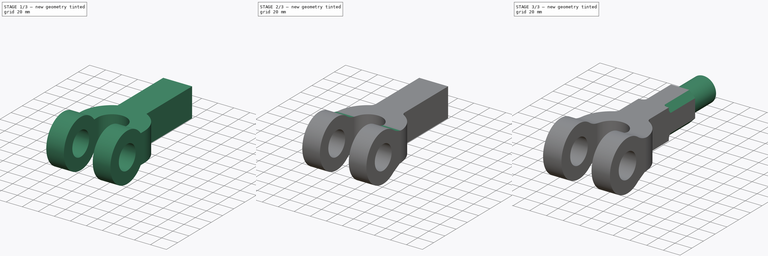
[diagram: build sequence overview — one tinted view per stage of 3, left to right]
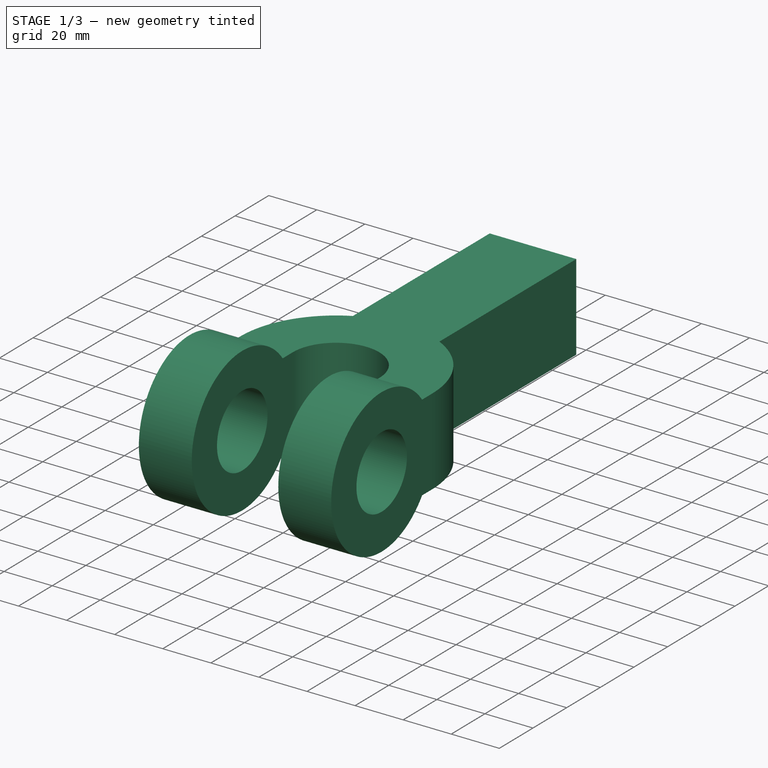
[diagram: stage 1 of 3 — iso view after this stage's code; geometry added in this stage tinted green]
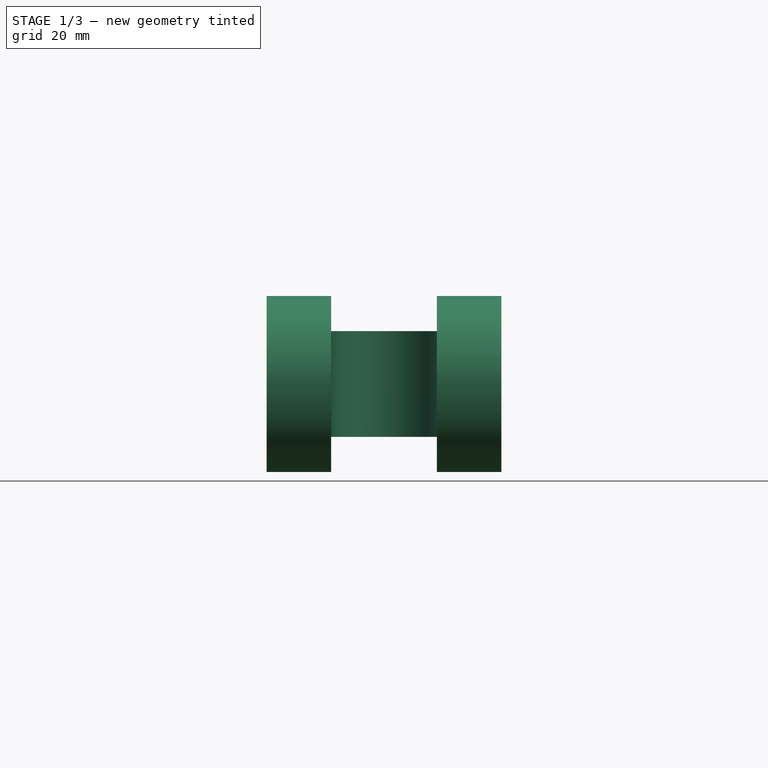
[diagram: stage 1 of 3 — front view after this stage's code; geometry added in this stage tinted green]
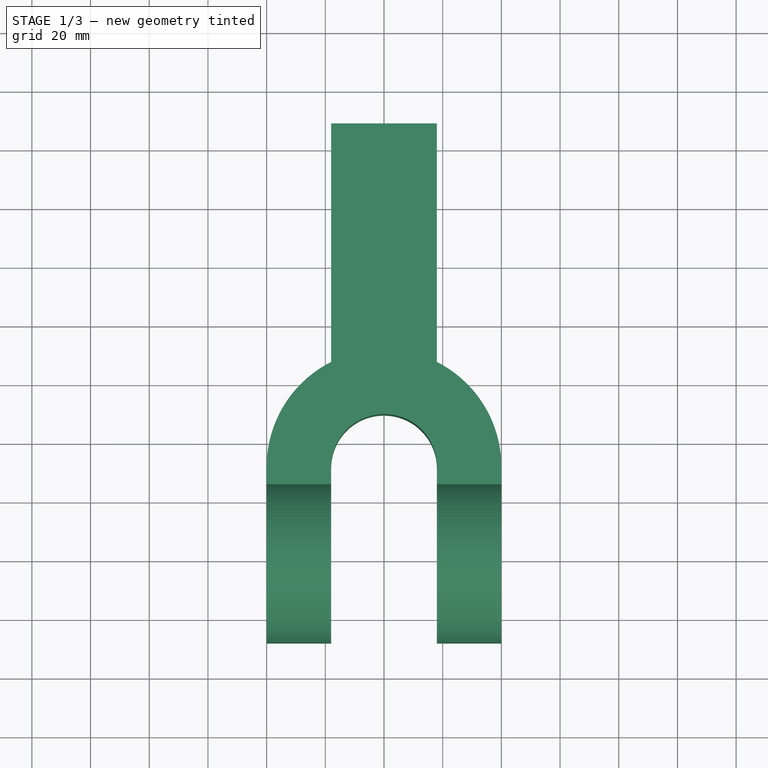
[diagram: stage 1 of 3 — top view after this stage's code; geometry added in this stage tinted green]
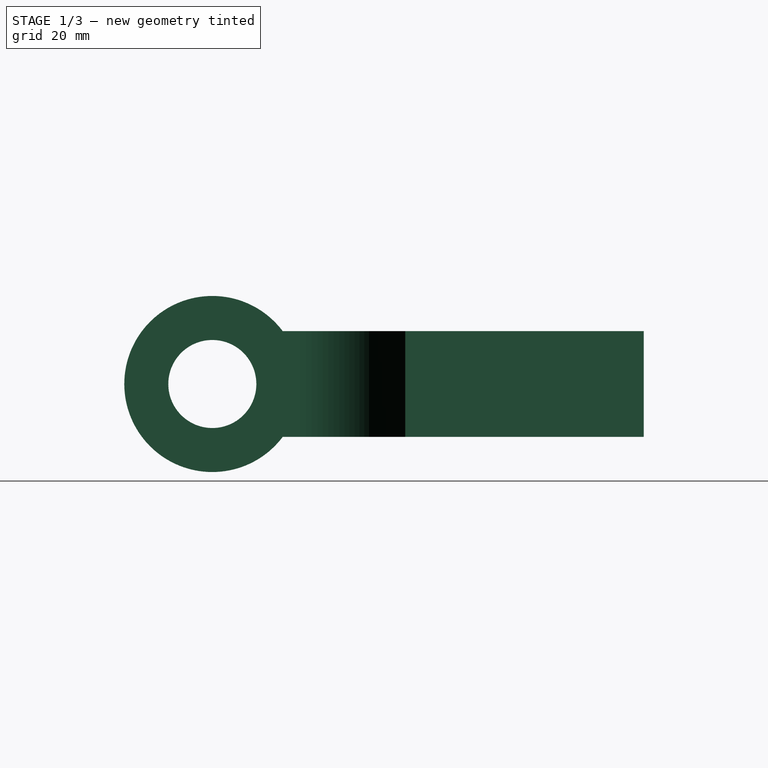
[diagram: stage 1 of 3 — right view after this stage's code; geometry added in this stage tinted green]
FCSTD DOCUMENT  (FreeCAD 1.0R39319 (Git))
Label: double_eye
License: All rights reserved
LicenseURL: https://en.wikipedia.org/wiki/All_rights_reserved
objects: Sketcher::SketchObject×5, PartDesign::Pocket×3, PartDesign::Fillet×3, PartDesign::Pad×1, Part::Extrusion×1, PartDesign::Body×1
note: 33 computed .brp shape members not serialized (recipe doc carries the construction recipe); baked Part::Feature solids carry a one-line shape summary decoded from their .brp

FEATURE [Sketcher::SketchObject] Sketch
  ArcFitTolerance = 1e-06
  AttachmentSupport = -> [XY_Plane]
  FullyConstrained = true
  MakeInternals = false
  MapMode = 5
  sketch-geometry (4):
    g0: LineSegment StartX=-40 StartY=88.5 StartZ=0 EndX=-40 EndY=-88.5 EndZ=0
    g1: LineSegment StartX=-40 StartY=-88.5 StartZ=0 EndX=40 EndY=-88.5 EndZ=0
    g2: LineSegment StartX=40 StartY=-88.5 StartZ=0 EndX=40 EndY=88.5 EndZ=0
    g3: LineSegment StartX=40 StartY=88.5 StartZ=0 EndX=-40 EndY=88.5 EndZ=0
  constraints (11):
    c: Coincident(g0,g1)
    c: Coincident(g1,g2)
    c: Coincident(g2,g3)
    c: Coincident(g3,g0)
    c: Vertical(g0)
    c: Vertical(g2)
    c: Horizontal(g1)
    c: Horizontal(g3)
    c: Distance(g0,g2) = 80
    c: Distance(g1,g3) = 177
    c: Symmetric(g0,g1,g-1)
FEATURE [PartDesign::Pad] Pad
  Direction = (0,0,1)
  Length = 60
  Length2 = 10
  Profile = -> Sketch
  ReferenceAxis = -> Sketch [N_Axis]
  Refine = true
  Suppressed = false
  Type = 0
FEATURE [Sketcher::SketchObject] Sketch001
  ArcFitTolerance = 1e-06
  AttachmentSupport = -> [Pad]
  ExternalGeometry = -> [Pad]
  FullyConstrained = false
  MakeInternals = false
  MapMode = 5
  Placement = pos=(-40,0,0) rot=(0.57735,-0.57735,-0.57735;2.0944rad)
  sketch-geometry (15):
    g0: ArcOfCircle CenterX=58.5 CenterY=30 CenterZ=0 NormalX=0 NormalY=0 NormalZ=1 AngleXU=0 Radius=30 StartAngle=4.71239 EndAngle=7.85398
    g1: LineSegment StartX=58.5 StartY=60 StartZ=0 EndX=88.5 EndY=60 EndZ=0
    g2: LineSegment StartX=88.5 StartY=60 StartZ=0 EndX=88.5 EndY=0 EndZ=0
    g3: LineSegment StartX=58.5 StartY=0 StartZ=0 EndX=88.5 EndY=0 EndZ=0
    g4: Circle CenterX=58.5 CenterY=30 CenterZ=0 NormalX=0 NormalY=0 NormalZ=1 AngleXU=0 Radius=15
    g5: Circle [constr] CenterX=58.5 CenterY=30 CenterZ=0 NormalX=0 NormalY=0 NormalZ=1 AngleXU=0 Radius=30
    g6: LineSegment StartX=34.5 StartY=48 StartZ=0 EndX=-88.5 EndY=48 EndZ=0
    g7: LineSegment StartX=34.5 StartY=12 StartZ=0 EndX=-88.5 EndY=12 EndZ=0
    g8: LineSegment [constr] StartX=88.5 StartY=30 StartZ=0 EndX=-88.4491 EndY=30 EndZ=0
    g9: LineSegment StartX=-88.5 StartY=48 StartZ=0 EndX=-88.5 EndY=60 EndZ=0
    g10: LineSegment StartX=-88.5 StartY=60 StartZ=0 EndX=58.5 EndY=60 EndZ=0
    g11: LineSegment StartX=-88.5 StartY=12 StartZ=0 EndX=-88.5 EndY=0 EndZ=0
    g12: LineSegment StartX=-88.5 StartY=0 StartZ=0 EndX=58.5 EndY=0 EndZ=0
    g13: ArcOfCircle CenterX=58.5 CenterY=30 CenterZ=0 NormalX=0 NormalY=0 NormalZ=1 AngleXU=0 Radius=30 StartAngle=1.5708 EndAngle=2.49809
    g14: ArcOfCircle CenterX=58.5 CenterY=30 CenterZ=0 NormalX=0 NormalY=0 NormalZ=1 AngleXU=0 Radius=30 StartAngle=3.78509 EndAngle=4.71239
  constraints (40):
    c: Diameter(g0) = 60
    c: Distance(g0,g-3) = 30
    c: Tangent(g0,g-4)
    c: Coincident(g1,g-4)
    c: Horizontal(g1)
    c: Coincident(g2,g1)
    c: Coincident(g2,g-3)
    c: Coincident(g3,g2)
    c: Horizontal(g3)
    c: Diameter(g4) = 30
    c: Coincident(g4,g0)
    c: Coincident(g0,g1)
    c: Coincident(g0,g3)
    c: Coincident(g5,g0)
    c: PointOnObject(g0,g5)
    c: PointOnObject(g6,g5)
    c: Horizontal(g6)
    c: PointOnObject(g7,g5)
    c: Horizontal(g7)
    c: Equal(g6,g7)
    c: Distance(g7,g6) = 36
    c: PointOnObject(g8,g2)
    c: Horizontal(g8)
    c: Symmetric(g6,g7,g8)
    c: Coincident(g9,g6)
    c: PointOnObject(g9,g-4)
    c: Vertical(g9)
    c: Coincident(g10,g9)
    c: Coincident(g10,g0)
    c: Coincident(g11,g7)
    c: PointOnObject(g11,g-1)
    c: Vertical(g11)
    c: Coincident(g12,g11)
    c: Coincident(g12,g0)
    c: DistanceX(g10,g10) = 147
    c: Coincident(g14,g13)
    c: Coincident(g14,g7)
    c: Coincident(g14,g0)
    c: Coincident(g13,g0)
    c: Coincident(g13,g6)
FEATURE [PartDesign::Pocket] Pocket
  BaseFeature = -> Pad
  Direction = (1,0,0)
  Length = 80
  Length2 = 5
  Profile = -> Sketch001
  ReferenceAxis = -> Sketch001 [N_Axis]
  Refine = true
  Suppressed = false
  Type = 0
FEATURE [Sketcher::SketchObject] Sketch002
  ArcFitTolerance = 1e-06
  AttachmentSupport = -> [Pocket]
  ExternalGeometry = -> [Pocket]
  FullyConstrained = false
  MakeInternals = false
  MapMode = 5
  Placement = pos=(0,0,48) rot=(0,0,1;0rad)
  sketch-geometry (12):
    g0: ArcOfCircle CenterX=0 CenterY=-28.5 CenterZ=0 NormalX=0 NormalY=0 NormalZ=1 AngleXU=0 Radius=18 StartAngle=7e-16 EndAngle=3.14159
    g1: LineSegment StartX=-18 StartY=-28.5 StartZ=0 EndX=-18 EndY=-88.5 EndZ=0
    g2: LineSegment StartX=18 StartY=-28.5 StartZ=0 EndX=18 EndY=-88.5 EndZ=0
    g3: LineSegment StartX=-18 StartY=-88.5 StartZ=0 EndX=18 EndY=-88.5 EndZ=0
    g4: LineSegment StartX=-18 StartY=88.5 StartZ=0 EndX=-18 EndY=7.22114 EndZ=0
    g5: LineSegment StartX=18 StartY=88.5 StartZ=0 EndX=18 EndY=7.22114 EndZ=0
    g6: LineSegment StartX=-18 StartY=88.5 StartZ=0 EndX=-40 EndY=88.5 EndZ=0
    g7: LineSegment StartX=-40 StartY=88.5 StartZ=0 EndX=-40 EndY=-28.5 EndZ=0
    g8: LineSegment StartX=18 StartY=88.5 StartZ=0 EndX=40 EndY=88.5 EndZ=0
    g9: LineSegment StartX=40 StartY=88.5 StartZ=0 EndX=40 EndY=-28.5 EndZ=0
    g10: ArcOfCircle CenterX=0 CenterY=-28.5 CenterZ=0 NormalX=0 NormalY=0 NormalZ=1 AngleXU=0 Radius=40 StartAngle=2.03756 EndAngle=3.14159
    g11: ArcOfCircle CenterX=0 CenterY=-28.5 CenterZ=0 NormalX=0 NormalY=0 NormalZ=1 AngleXU=0 Radius=40 StartAngle=-3.606e-13 EndAngle=1.10403
  constraints (28):
    c: Diameter(g0) = 36
    c: PointOnObject(g0,g-2)
    c: PointOnObject(g1,g-7)
    c: Vertical(g1)
    c: PointOnObject(g2,g-7)
    c: Vertical(g2)
    c: Equal(g1,g2)
    c: Tangent(g0,g1) = -1.5708
    c: Coincident(g0,g2)
    c: Coincident(g3,g1)
    c: Coincident(g3,g2)
    c: PointOnObject(g4,g-8)
    c: PointOnObject(g4,g10)
    c: Vertical(g4)
    c: Vertical(g5)
    c: Distance(g5,g4) = 36
    c: Symmetric(g4,g5,g-2)
    c: Coincident(g6,g4)
    c: Coincident(g6,g-8)
    c: Coincident(g7,g6)
    c: Coincident(g8,g5)
    c: Coincident(g8,g-8)
    c: Coincident(g9,g8)
    c: Distance(g0,g8) = 117
    c: Coincident(g11,g5)
    c: PointOnObject(g10,g4)
    c: PointOnObject(g10,g7)
    c: PointOnObject(g11,g9)
FEATURE [PartDesign::Pocket] Pocket001
  BaseFeature = -> Pocket
  Direction = (0,0,-1)
  Length = 5
  Length2 = 5
  Midplane = true
  Profile = -> Sketch002
  ReferenceAxis = -> Sketch002 [N_Axis]
  Refine = true
  Suppressed = false
  Type = 1
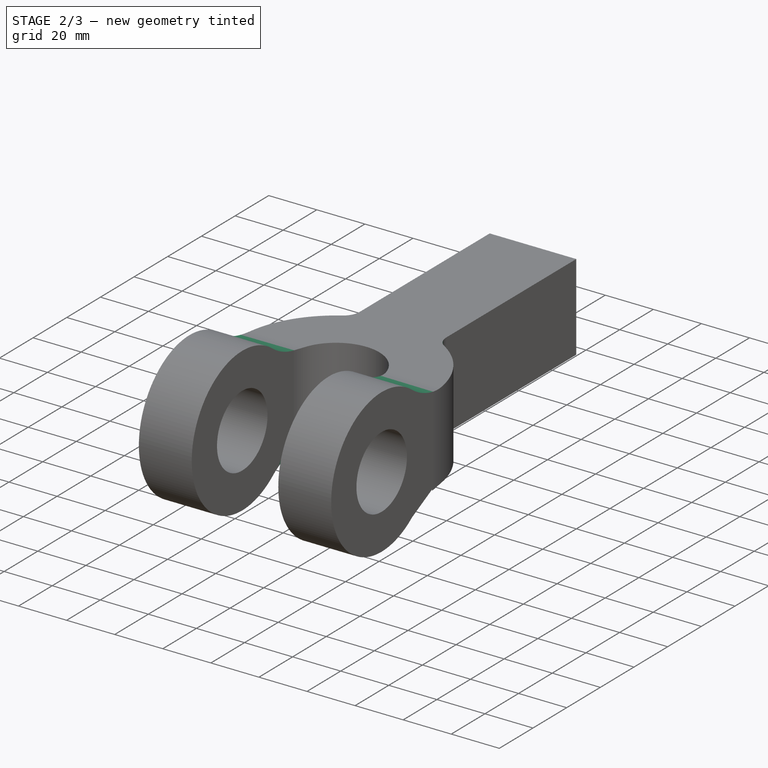
[diagram: stage 2 of 3 — iso view after this stage's code; geometry added in this stage tinted green]
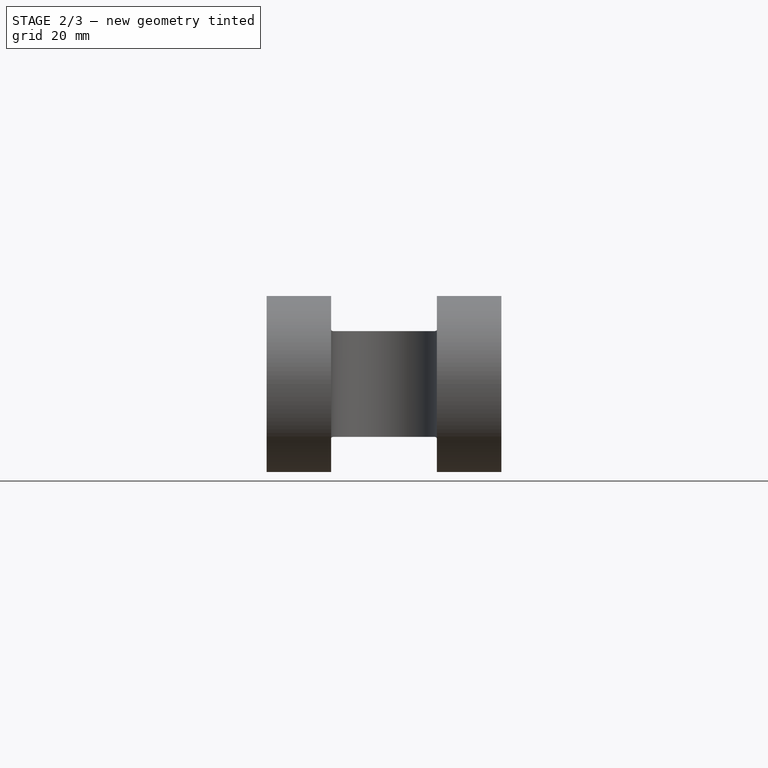
[diagram: stage 2 of 3 — front view after this stage's code; geometry added in this stage tinted green]
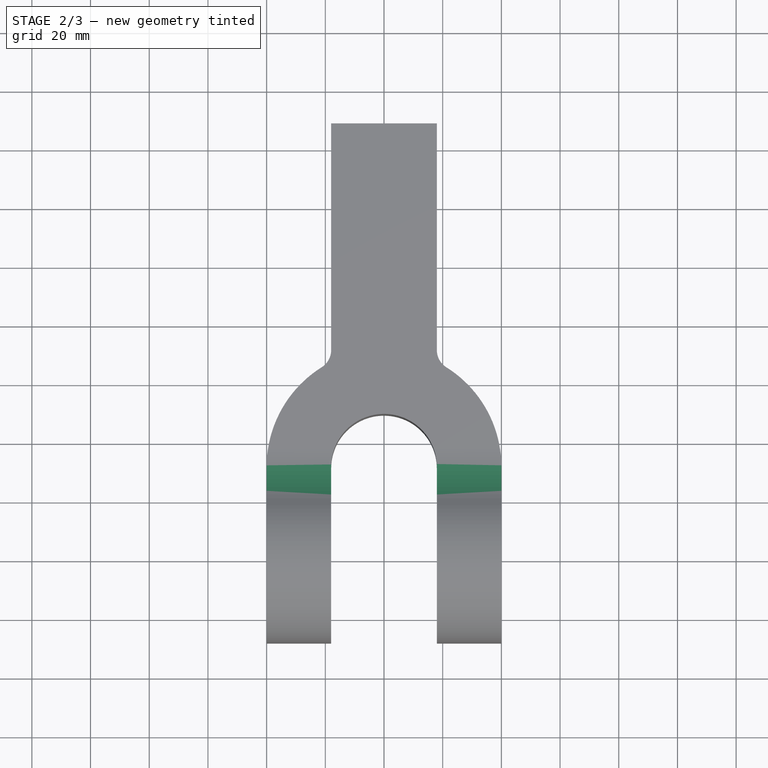
[diagram: stage 2 of 3 — top view after this stage's code; geometry added in this stage tinted green]
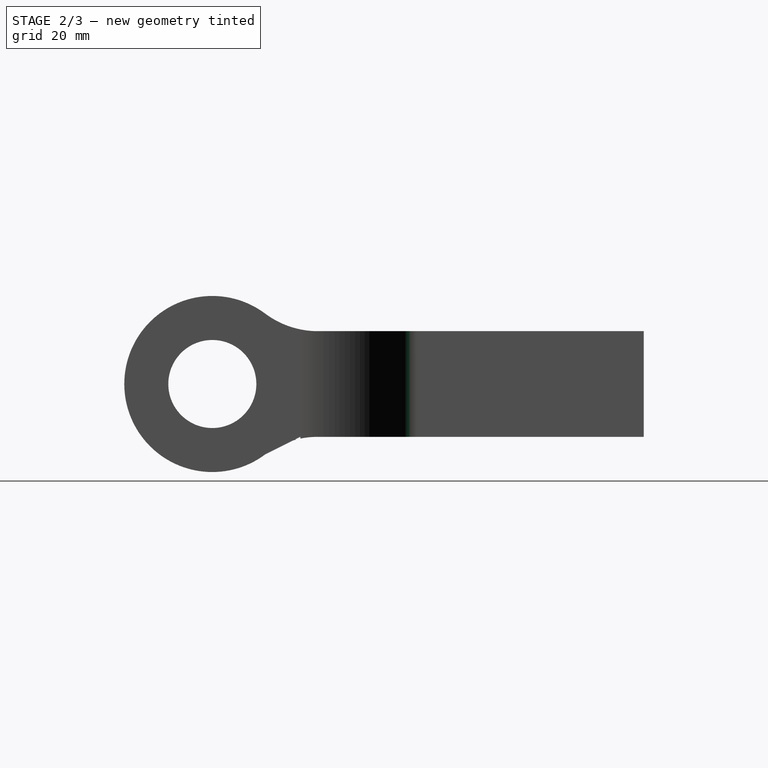
[diagram: stage 2 of 3 — right view after this stage's code; geometry added in this stage tinted green]
FEATURE [PartDesign::Fillet] Fillet
  Base = -> Pocket001 [Edge29,Edge44]
  BaseFeature = -> Pocket001
  Radius = 7
  Refine = true
  SupportTransform = false
  Suppressed = false
  UseAllEdges = false
FEATURE [PartDesign::Fillet] Fillet001
  Base = -> Fillet [Edge5,Edge13,Edge60,Edge59]
  BaseFeature = -> Fillet
  Radius = 30
  Refine = true
  SupportTransform = false
  Suppressed = false
  UseAllEdges = false
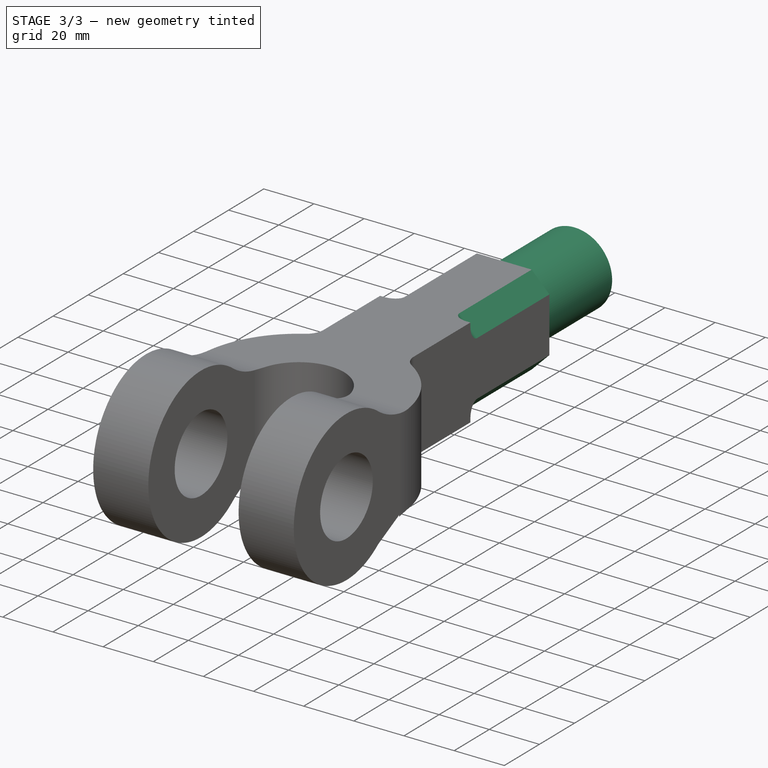
[diagram: stage 3 of 3 — iso view after this stage's code; geometry added in this stage tinted green]
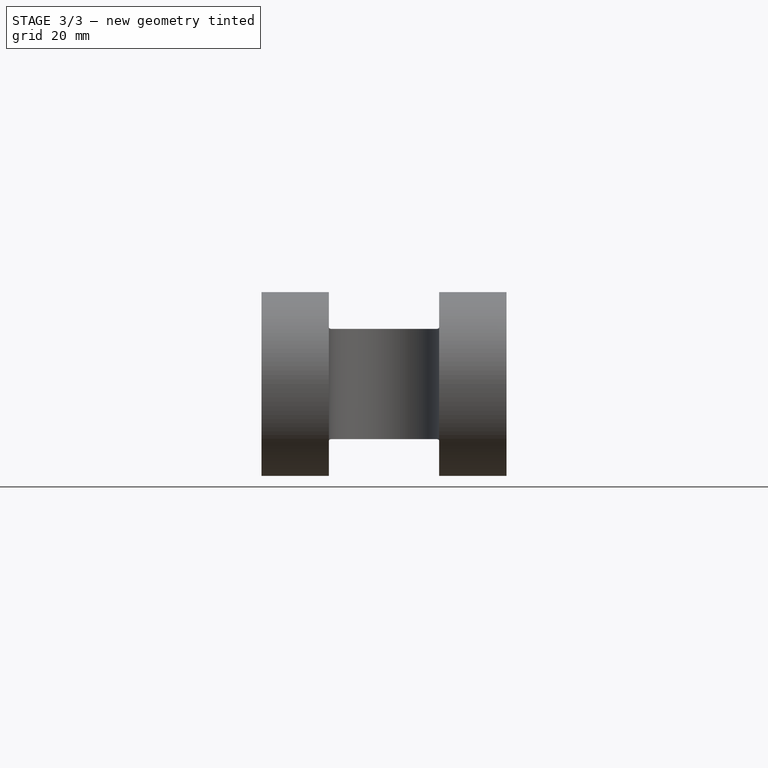
[diagram: stage 3 of 3 — front view after this stage's code; geometry added in this stage tinted green]
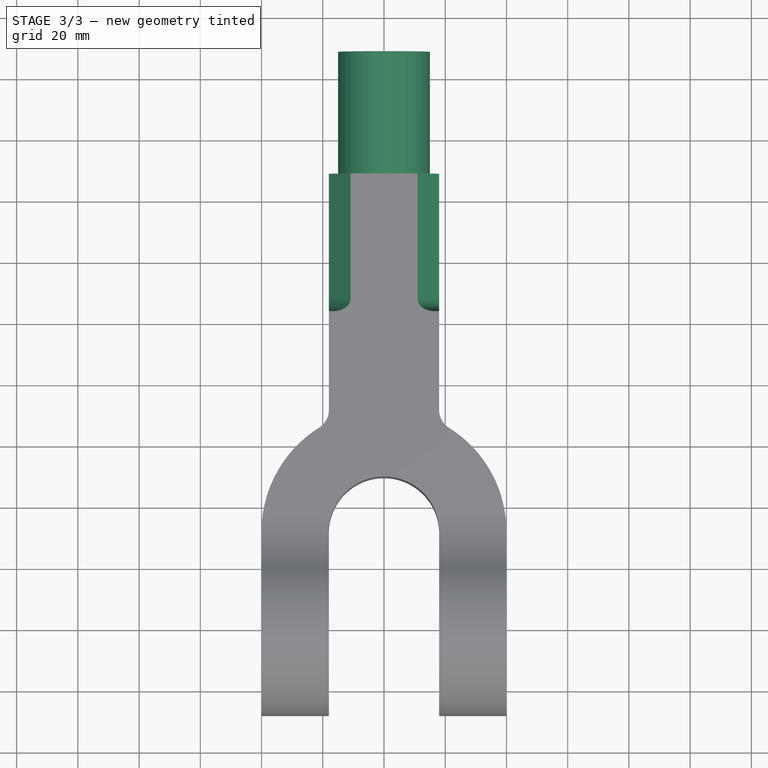
[diagram: stage 3 of 3 — top view after this stage's code; geometry added in this stage tinted green]
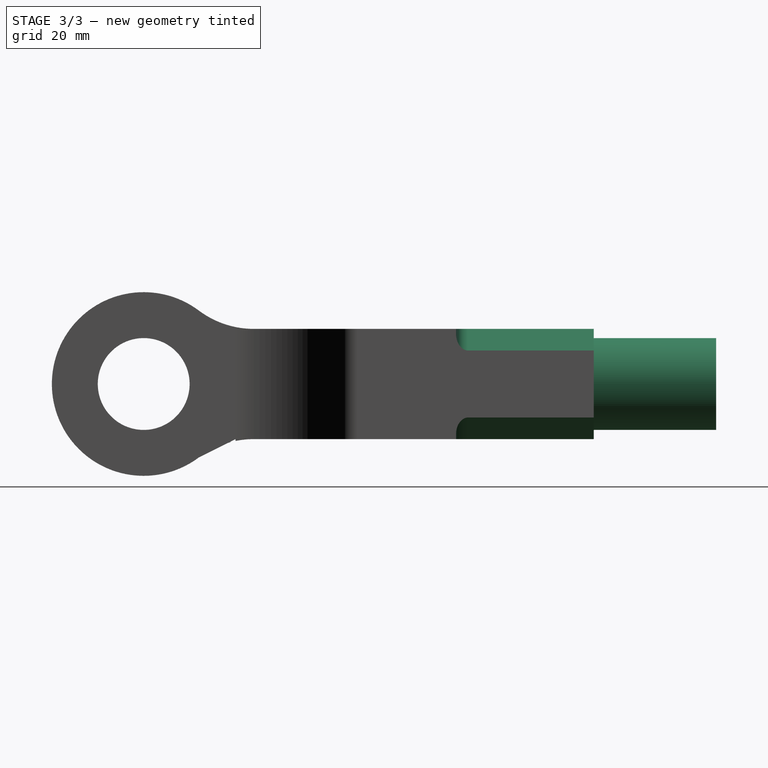
[diagram: stage 3 of 3 — right view after this stage's code; geometry added in this stage tinted green]
FEATURE [Sketcher::SketchObject] Sketch003
  ArcFitTolerance = 1e-06
  AttachmentSupport = -> [Fillet001]
  ExternalGeometry = -> [Fillet001]
  FullyConstrained = true
  MakeInternals = false
  MapMode = 5
  Placement = pos=(0,88.5,0) rot=(0,0.707107,0.707107;3.14159rad)
  sketch-geometry (1):
    g0: Circle CenterX=1.4e-15 CenterY=30 CenterZ=0 NormalX=0 NormalY=0 NormalZ=1 AngleXU=0 Radius=15
  constraints (2):
    c: Diameter(g0) = 30
    c: Symmetric(g-4,g-6,g0)
FEATURE [Part::Extrusion] Extrude
  Base = -> Sketch003
  Dir = (0,1,-2e-16)
  DirMode = 2
  FaceMakerClass = Part::FaceMakerBullseye
  FaceMakerMode = 3
  LengthFwd = 40
  LengthRev = 0
  Solid = true
  Symmetric = false
FEATURE [Sketcher::SketchObject] Sketch004
  ArcFitTolerance = 1e-06
  AttachmentSupport = -> [Fillet001]
  ExternalGeometry = -> [Fillet001]
  FullyConstrained = false
  MakeInternals = false
  MapMode = 5
  Placement = pos=(0,88.5,0) rot=(0,0.707107,0.707107;3.14159rad)
  sketch-geometry (13):
    g0: LineSegment StartX=-18 StartY=48 StartZ=0 EndX=-18 EndY=40.9289 EndZ=0
    g1: LineSegment StartX=-18 StartY=40.9289 StartZ=0 EndX=-10.9289 EndY=48 EndZ=0
    g2: LineSegment StartX=-10.9289 StartY=48 StartZ=0 EndX=-18 EndY=48 EndZ=0
    g3: LineSegment StartX=10.9289 StartY=48 StartZ=0 EndX=18 EndY=48 EndZ=0
    g4: LineSegment StartX=18 StartY=48 StartZ=0 EndX=18 EndY=40.9289 EndZ=0
    g5: LineSegment StartX=18 StartY=40.9289 StartZ=0 EndX=10.9289 EndY=48 EndZ=0
    g6: LineSegment [constr] StartX=-18 StartY=30 StartZ=0 EndX=18 EndY=30 EndZ=0
    g7: LineSegment StartX=-10.9289 StartY=12 StartZ=0 EndX=-18 EndY=12 EndZ=0
    g8: LineSegment StartX=-18 StartY=12 StartZ=0 EndX=-18 EndY=19.0711 EndZ=0
    g9: LineSegment StartX=-18 StartY=19.0711 StartZ=0 EndX=-10.9289 EndY=12 EndZ=0
    g10: LineSegment StartX=10.9289 StartY=12 StartZ=0 EndX=18 EndY=12 EndZ=0
    g11: LineSegment StartX=18 StartY=12 StartZ=0 EndX=18 EndY=19.0711 EndZ=0
    g12: LineSegment StartX=18 StartY=19.0711 StartZ=0 EndX=10.9289 EndY=12 EndZ=0
  constraints (25):
    c: Coincident(g0,g-4)
    c: PointOnObject(g0,g-4)
    c: Coincident(g1,g0)
    c: PointOnObject(g1,g-3)
    c: Coincident(g2,g1)
    c: Coincident(g2,g0)
    c: Equal(g2,g0)
    c: Distance(g1,g1) = 10
    c: Coincident(g5,g4)
    c: Coincident(g3,g5)
    c: Coincident(g3,g4)
    c: Equal(g3,g4)
    c: Block(g5)
    c: Symmetric(g-4,g-4,g6)
    c: Symmetric(g-5,g-5,g6)
    c: Coincident(g9,g8)
    c: Coincident(g7,g9)
    c: Coincident(g7,g8)
    c: Equal(g7,g8)
    c: Coincident(g12,g11)
    c: Coincident(g10,g12)
    c: Coincident(g10,g11)
    c: Equal(g10,g11)
    c: Block(g12)
    c: Block(g9)
FEATURE [PartDesign::Pocket] Pocket002
  BaseFeature = -> Fillet001
  Direction = (0,-1,2e-16)
  Length = 45
  Length2 = 5
  Profile = -> Sketch004
  ReferenceAxis = -> Sketch004 [N_Axis]
  Refine = true
  Suppressed = false
  Type = 0
FEATURE [PartDesign::Fillet] Fillet002
  Base = -> Pocket002 [Edge36,Edge76,Edge75,Edge28]
  BaseFeature = -> Pocket002
  Radius = 4
  Refine = true
  SupportTransform = false
  Suppressed = false
  UseAllEdges = false
FEATURE [PartDesign::Body] Body
  AllowCompound = false
  Group = -> [Sketch,Pad,Sketch001,Pocket,Sketch002,Pocket001,Fillet,Fillet001,Sketch003,Sketch004,Pocket002,Fillet002]
  Origin = -> Origin
  Tip = -> Fillet002
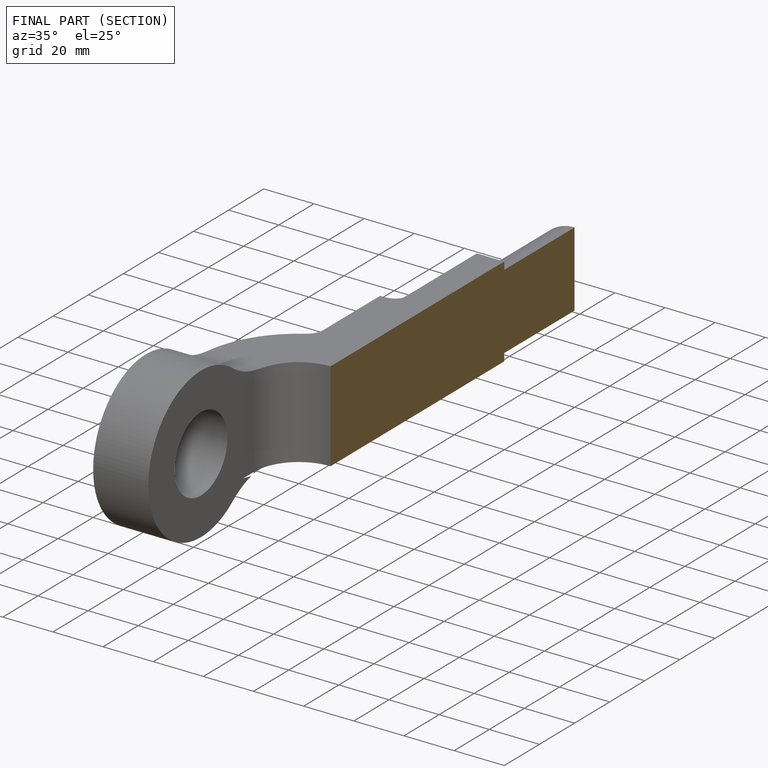
[diagram: finished part — half-section view (interior)]
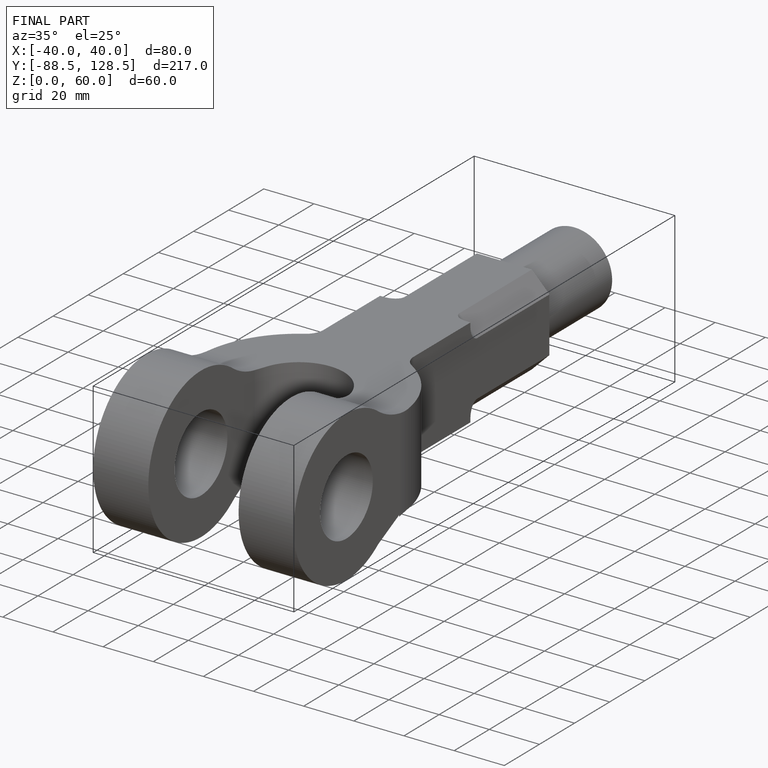
[diagram: finished part — iso view with bounding-box wireframe]
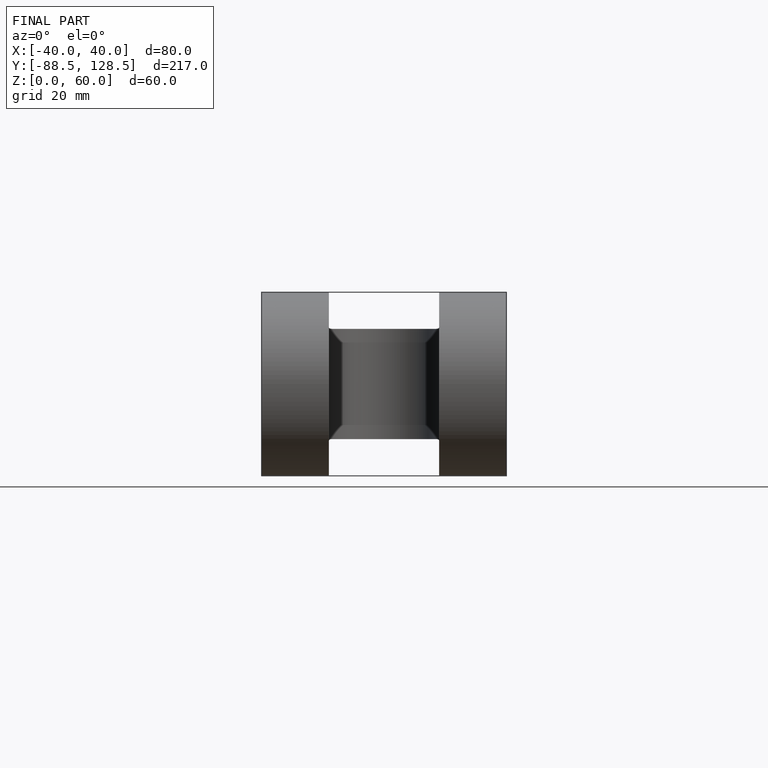
[diagram: finished part — front view with bounding-box wireframe]
